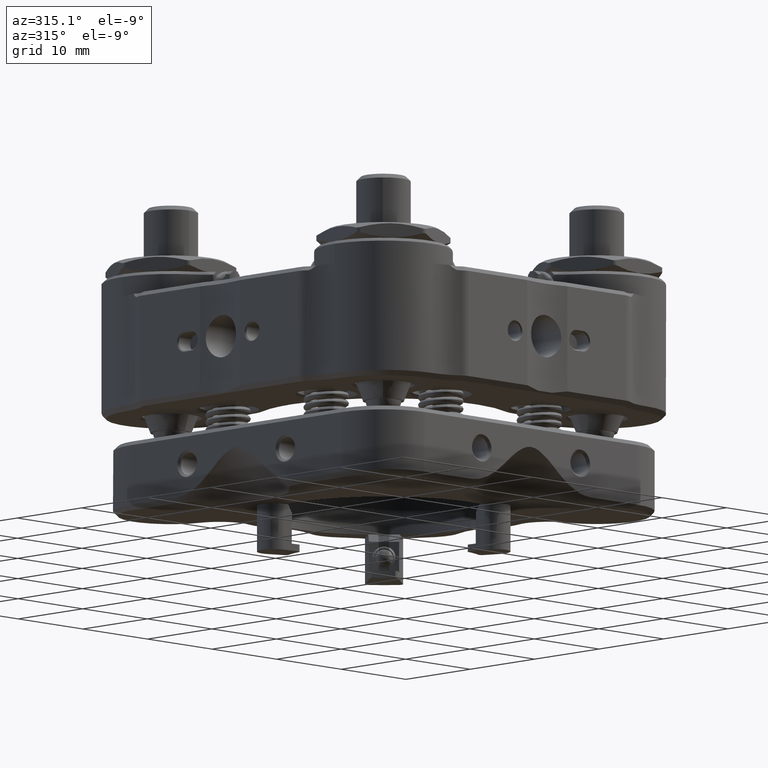
[diagram: clean part render]
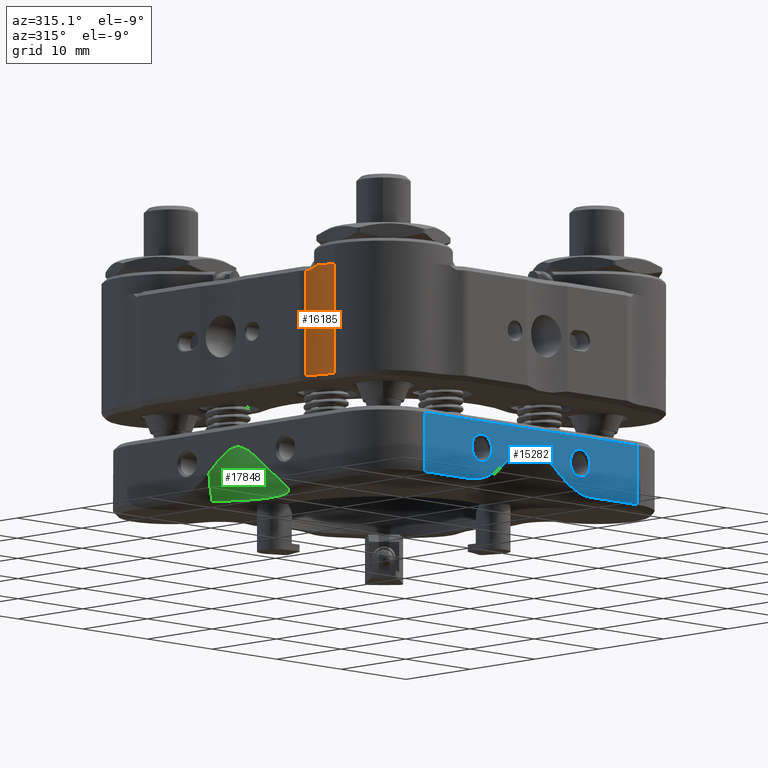
[diagram: same view with three faces highlighted in distinct colors, each labeled with its STEP entity id]
A machine part, auxiliary view with three faces highlighted in distinct colors.
Their STEP definitions:

[orange] entity #16185 — the highlighted cylindrical surface (partial cylindrical patch) has radius 6.477 mm, axis along (-0, -0, -1).
#568 = ORIENTED_EDGE ( 'NONE', *, *, #15772, .F. ) ;
#1416 = DIRECTION ( 'NONE',  ( -0.000000000000000000, -0.000000000000000000, -1.000000000000000000 ) ) ;
#1873 = VERTEX_POINT ( 'NONE', #7665 ) ;
#1997 = CARTESIAN_POINT ( 'NONE',  ( -5.235848266386701866, 12.11409739724832235, 26.18470909685331449 ) ) ;
#2195 = DIRECTION ( 'NONE',  ( -1.000000000000000000, 0.000000000000000000, 0.000000000000000000 ) ) ;
#2839 = AXIS2_PLACEMENT_3D ( 'NONE', #5561, #11232, #2195 ) ;
#2878 = LINE ( 'NONE', #15991, #3056 ) ;
#3056 = VECTOR ( 'NONE', #17599, 1000.000000000000000 ) ;
#3069 = CARTESIAN_POINT ( 'NONE',  ( 0.2211517336132215461, 15.60303419805180702, 26.18470909685331804 ) ) ;
#3095 = CARTESIAN_POINT ( 'NONE',  ( 0.5098201380539540972, 15.10687263955178672, 37.89297105061405091 ) ) ;
#3432 = ORIENTED_EDGE ( 'NONE', *, *, #10567, .T. ) ;
#3992 = CARTESIAN_POINT ( 'NONE',  ( 0.7582047128819536796, 14.57074274114253676, 38.21881809474184166 ) ) ;
#4446 = VECTOR ( 'NONE', #1416, 1000.000000000000000 ) ;
#5155 = EDGE_CURVE ( 'NONE', #10057, #10962, #15899, .T. ) ;
#5561 = CARTESIAN_POINT ( 'NONE',  ( -5.235848266386701866, 12.11409739724832235, 40.91670909685328894 ) ) ;
#5681 = FACE_OUTER_BOUND ( 'NONE', #9482, .T. ) ;
#5837 = DIRECTION ( 'NONE',  ( 1.000000000000000000, -2.410454112056701981E-14, 0.000000000000000000 ) ) ;
#5979 = CARTESIAN_POINT ( 'NONE',  ( 1.241151733613526931, 12.11409739724833301, 38.37670909685328979 ) ) ;
#6762 = CARTESIAN_POINT ( 'NONE',  ( 0.8347914106203585538, 14.37216358581490994, 38.37670909685329690 ) ) ;
#7665 = CARTESIAN_POINT ( 'NONE',  ( 0.2211517336135962464, 15.60303419805121017, 37.85226476518817407 ) ) ;
#7691 = CARTESIAN_POINT ( 'NONE',  ( 0.7979572952428172217, 14.47118931119468499, 38.29653674543263975 ) ) ;
#7820 = CARTESIAN_POINT ( 'NONE',  ( 0.6707764969753293727, 14.77409013573370800, 38.07395457590173748 ) ) ;
#7984 = VERTEX_POINT ( 'NONE', #16446 ) ;
#9044 = CARTESIAN_POINT ( 'NONE',  ( 0.3686859002600476054, 15.36074578826469583, 37.85226476518817407 ) ) ;
#9283 = DIRECTION ( 'NONE',  ( -0.000000000000000000, -0.000000000000000000, -1.000000000000000000 ) ) ;
#9482 = EDGE_LOOP ( 'NONE', ( #9872, #15512, #20023, #19445, #3432, #22421, #568 ) ) ;
#9541 = CARTESIAN_POINT ( 'NONE',  ( 0.3686859002600476054, 15.36074578826469583, 37.85226476518817407 ) ) ;
#9872 = ORIENTED_EDGE ( 'NONE', *, *, #5155, .T. ) ;
#10057 = VERTEX_POINT ( 'NONE', #6762 ) ;
#10451 = VERTEX_POINT ( 'NONE', #9541 ) ;
#10567 = EDGE_CURVE ( 'NONE', #13549, #7984, #11732, .T. ) ;
#10962 = VERTEX_POINT ( 'NONE', #22693 ) ;
#11232 = DIRECTION ( 'NONE',  ( -0.000000000000000000, -0.000000000000000000, -1.000000000000000000 ) ) ;
#11683 = B_SPLINE_CURVE_WITH_KNOTS ( 'NONE', 3,
 ( #23984, #3095, #17920, #16322 ),
 .UNSPECIFIED., .F., .F.,
 ( 4, 4 ),
 ( 0.0007939187146302412786, 0.001232463739666960541 ),
 .UNSPECIFIED. ) ;
#11732 = CIRCLE ( 'NONE', #21979, 6.477000000000002089 ) ;
#11953 = AXIS2_PLACEMENT_3D ( 'NONE', #22748, #9283, #5837 ) ;
#13549 = VERTEX_POINT ( 'NONE', #3069 ) ;
#14537 = EDGE_CURVE ( 'NONE', #10451, #1873, #21930, .T. ) ;
#14734 = CARTESIAN_POINT ( 'NONE',  ( 0.3298610191015162174, 15.42686197527531178, 37.85239079076733759 ) ) ;
#14857 = CARTESIAN_POINT ( 'NONE',  ( 0.2675935170643190530, 15.52958350514387220, 37.85224851225915899 ) ) ;
#14979 = CARTESIAN_POINT ( 'NONE',  ( 0.3429328679414468950, 15.40490022437110795, 37.85242707727061884 ) ) ;
#15254 = CARTESIAN_POINT ( 'NONE',  ( 0.6227957932268850527, 14.87859670921835153, 38.00594670578765033 ) ) ;
#15512 = ORIENTED_EDGE ( 'NONE', *, *, #20585, .T. ) ;
#15772 = EDGE_CURVE ( 'NONE', #10057, #22536, #22979, .T. ) ;
#15899 = B_SPLINE_CURVE_WITH_KNOTS ( 'NONE', 3,
 ( #20922, #7691, #3992, #7820, #15254, #22520 ),
 .UNSPECIFIED., .F., .F.,
 ( 4, 2, 4 ),
 ( 3.299420450044008210E-07, 0.0003971243283376228793, 0.0007939187146302412786 ),
 .UNSPECIFIED. ) ;
#15991 = CARTESIAN_POINT ( 'NONE',  ( 0.2211517336132215461, 15.60303419805180702, 40.91670909685328894 ) ) ;
#16185 = ADVANCED_FACE ( 'NONE', ( #5681 ), #16795, .F. ) ;
#16322 = CARTESIAN_POINT ( 'NONE',  ( 0.3686859002600476054, 15.36074578826469583, 37.85226476518817407 ) ) ;
#16446 = CARTESIAN_POINT ( 'NONE',  ( 1.241151733613298003, 12.11409739724833301, 26.18470909685331804 ) ) ;
#16486 = EDGE_CURVE ( 'NONE', #22536, #7984, #18339, .T. ) ;
#16795 = CYLINDRICAL_SURFACE ( 'NONE', #2839, 6.477000000000002089 ) ;
#17192 = DIRECTION ( 'NONE',  ( -1.000000000000000000, 0.000000000000000000, 0.000000000000000000 ) ) ;
#17599 = DIRECTION ( 'NONE',  ( -0.000000000000000000, -0.000000000000000000, -1.000000000000000000 ) ) ;
#17920 = CARTESIAN_POINT ( 'NONE',  ( 0.4418116568815396716, 15.23451228463644291, 37.85226476518815986 ) ) ;
#18097 = CARTESIAN_POINT ( 'NONE',  ( 1.241151733613298003, 12.11409739724833301, 40.91670909685328894 ) ) ;
#18339 = LINE ( 'NONE', #18097, #4446 ) ;
#19043 = DIRECTION ( 'NONE',  ( 0.000000000000000000, 0.000000000000000000, -1.000000000000000000 ) ) ;
#19445 = ORIENTED_EDGE ( 'NONE', *, *, #22263, .T. ) ;
#20023 = ORIENTED_EDGE ( 'NONE', *, *, #14537, .T. ) ;
#20148 = CARTESIAN_POINT ( 'NONE',  ( 0.2902566093386411694, 15.49251328379700077, 37.85226608425499961 ) ) ;
#20585 = EDGE_CURVE ( 'NONE', #10962, #10451, #11683, .T. ) ;
#20922 = CARTESIAN_POINT ( 'NONE',  ( 0.8347914106203585538, 14.37216358581490994, 38.37670909685329690 ) ) ;
#21930 = B_SPLINE_CURVE_WITH_KNOTS ( 'NONE', 3,
 ( #9044, #24116, #14979, #14734, #22491, #22013, #20148, #14857, #22248, #22368 ),
 .UNSPECIFIED., .F., .F.,
 ( 4, 3, 3, 4 ),
 ( 1.893477691975264912E-18, 7.667292523605344985E-05, 0.0001533447206454750171, 0.0002836954016267847676 ),
 .UNSPECIFIED. ) ;
#21979 = AXIS2_PLACEMENT_3D ( 'NONE', #1997, #19043, #17192 ) ;
#22013 = CARTESIAN_POINT ( 'NONE',  ( 0.3035873900774355150, 15.47070800732669227, 37.85227642037422413 ) ) ;
#22248 = CARTESIAN_POINT ( 'NONE',  ( 0.2445559523363232124, 15.56642796845700438, 37.85247422117595306 ) ) ;
#22263 = EDGE_CURVE ( 'NONE', #1873, #13549, #2878, .T. ) ;
#22368 = CARTESIAN_POINT ( 'NONE',  ( 0.2211517336135962464, 15.60303419805121017, 37.85226476518817407 ) ) ;
#22421 = ORIENTED_EDGE ( 'NONE', *, *, #16486, .F. ) ;
#22491 = CARTESIAN_POINT ( 'NONE',  ( 0.3167893018195869215, 15.44882350515155878, 37.85235450462925400 ) ) ;
#22520 = CARTESIAN_POINT ( 'NONE',  ( 0.5691312526200543731, 14.98703000765141979, 37.95228216517772069 ) ) ;
#22536 = VERTEX_POINT ( 'NONE', #5979 ) ;
#22693 = CARTESIAN_POINT ( 'NONE',  ( 0.5691312526200543731, 14.98703000765141979, 37.95228216517772069 ) ) ;
#22748 = CARTESIAN_POINT ( 'NONE',  ( -5.235848266386701866, 12.11409739724832235, 38.37670909685328979 ) ) ;
#22979 = CIRCLE ( 'NONE', #11953, 6.477000000000002089 ) ;
#23984 = CARTESIAN_POINT ( 'NONE',  ( 0.5691312526200543731, 14.98703000765141979, 37.95228216517772069 ) ) ;
#24116 = CARTESIAN_POINT ( 'NONE',  ( 0.3558751676715187218, 15.38286034452241857, 37.85242155693460120 ) ) ;

[blue] entity #15282 — the highlighted planar face has unit normal (0, 1, 0).
#47 = CARTESIAN_POINT ( 'NONE',  ( 16.50999999999978485, -22.86000000000005272, -25.52700000000059433 ) ) ;
#55 = DIRECTION ( 'NONE',  ( 1.000000000000000000, -4.490754628649650589E-15, 0.000000000000000000 ) ) ;
#380 = ORIENTED_EDGE ( 'NONE', *, *, #9646, .T. ) ;
#703 = CARTESIAN_POINT ( 'NONE',  ( -5.698729411158814706, -22.85999999999996035, -18.89167187656439140 ) ) ;
#726 = EDGE_LOOP ( 'NONE', ( #14531, #10539 ) ) ;
#805 = CARTESIAN_POINT ( 'NONE',  ( 6.968623685975025239, -22.86000000000001364, -19.47722792319549256 ) ) ;
#944 = CARTESIAN_POINT ( 'NONE',  ( 1.936523536324799677, -22.85999999999999943, -16.01078407317872276 ) ) ;
#1406 = AXIS2_PLACEMENT_3D ( 'NONE', #19906, #2979, #8180 ) ;
#2267 = EDGE_CURVE ( 'NONE', #5808, #2866, #8943, .T. ) ;
#2306 = ORIENTED_EDGE ( 'NONE', *, *, #17853, .T. ) ;
#2427 = ORIENTED_EDGE ( 'NONE', *, *, #10871, .T. ) ;
#2781 = CARTESIAN_POINT ( 'NONE',  ( 2.622963139611198091, -22.85999999999999233, -16.46929230700211377 ) ) ;
#2866 = VERTEX_POINT ( 'NONE', #5428 ) ;
#2970 = ORIENTED_EDGE ( 'NONE', *, *, #16178, .F. ) ;
#2979 = DIRECTION ( 'NONE',  ( -0.000000000000000000, -1.000000000000000000, -0.000000000000000000 ) ) ;
#3181 = DIRECTION ( 'NONE',  ( -0.000000000000000000, -1.000000000000000000, -0.000000000000000000 ) ) ;
#3427 = AXIS2_PLACEMENT_3D ( 'NONE', #23952, #3181, #10483 ) ;
#3513 = FACE_BOUND ( 'NONE', #726, .T. ) ;
#3627 = FACE_BOUND ( 'NONE', #17939, .T. ) ;
#3732 = EDGE_CURVE ( 'NONE', #7927, #19951, #6104, .T. ) ;
#3810 = CARTESIAN_POINT ( 'NONE',  ( -3.600392988598216881, -22.85999999999997101, -17.22872272163528962 ) ) ;
#3821 = CARTESIAN_POINT ( 'NONE',  ( -16.51000000000007617, -22.85999999999987864, -19.93900000000066441 ) ) ;
#3843 = DIRECTION ( 'NONE',  ( -1.000000000000000000, 4.490754628649650589E-15, -0.000000000000000000 ) ) ;
#3854 = VERTEX_POINT ( 'NONE', #15608 ) ;
#3908 = DIRECTION ( 'NONE',  ( 0.000000000000000000, 0.000000000000000000, -1.000000000000000000 ) ) ;
#4111 = B_SPLINE_CURVE_WITH_KNOTS ( 'NONE', 3,
 ( #10081, #6383, #13430, #15778, #17621, #703, #8225, #9844 ),
 .UNSPECIFIED., .F., .F.,
 ( 4, 2, 2, 4 ),
 ( 0.000000000000000000, 0.001386642077695629006, 0.002773284155391258013, 0.005546568310782516026 ),
 .UNSPECIFIED. ) ;
#4174 = CARTESIAN_POINT ( 'NONE',  ( -0.2090011009307225498, -22.85999999999998167, -15.36700000000062438 ) ) ;
#4215 = CIRCLE ( 'NONE', #3427, 1.525000000000002132 ) ;
#4248 = EDGE_CURVE ( 'NONE', #19951, #3854, #12999, .T. ) ;
#4669 = CIRCLE ( 'NONE', #6256, 1.525000000000002132 ) ;
#4776 = CARTESIAN_POINT ( 'NONE',  ( 3.916121610563087607, -22.86000000000000654, -17.49193097543176734 ) ) ;
#5129 = CARTESIAN_POINT ( 'NONE',  ( 7.619999999999755858, -22.86000000000002075, -17.85200000000059717 ) ) ;
#5312 = EDGE_CURVE ( 'NONE', #13520, #5807, #7325, .T. ) ;
#5428 = CARTESIAN_POINT ( 'NONE',  ( -4.229481576568709933, -22.85999999999996390, -17.76057014813173396 ) ) ;
#5436 = LINE ( 'NONE', #14952, #20668 ) ;
#5679 = CARTESIAN_POINT ( 'NONE',  ( -2.953480355449388028, -22.85999999999997101, -16.71742150105082558 ) ) ;
#5705 = CARTESIAN_POINT ( 'NONE',  ( 16.50999999999978485, -22.86000000000005627, -13.33500000000058883 ) ) ;
#5807 = VERTEX_POINT ( 'NONE', #10624 ) ;
#5808 = VERTEX_POINT ( 'NONE', #21862 ) ;
#6104 = LINE ( 'NONE', #47, #8756 ) ;
#6256 = AXIS2_PLACEMENT_3D ( 'NONE', #7736, #19216, #3908 ) ;
#6383 = CARTESIAN_POINT ( 'NONE',  ( -8.758351000379049012, -22.85999999999994259, -19.93900000000063955 ) ) ;
#6477 = CARTESIAN_POINT ( 'NONE',  ( 7.628391849384467349, -22.86000000000002075, -19.70508273283732592 ) ) ;
#6555 = CARTESIAN_POINT ( 'NONE',  ( 7.619999999999755858, -22.86000000000002075, -14.80200000000059468 ) ) ;
#7023 = CIRCLE ( 'NONE', #13720, 1.525000000000002132 ) ;
#7325 = CIRCLE ( 'NONE', #1406, 1.525000000000002132 ) ;
#7424 = EDGE_CURVE ( 'NONE', #15301, #10671, #11714, .T. ) ;
#7736 = CARTESIAN_POINT ( 'NONE',  ( -7.620000000000247908, -22.85999999999994969, -16.32700000000059504 ) ) ;
#7886 = CARTESIAN_POINT ( 'NONE',  ( -3.916793376327931675, -22.85999999999996390, -17.49250687094702528 ) ) ;
#7927 = VERTEX_POINT ( 'NONE', #20385 ) ;
#8079 = CARTESIAN_POINT ( 'NONE',  ( 4.229481576567869716, -22.86000000000000298, -17.76057014813174817 ) ) ;
#8180 = DIRECTION ( 'NONE',  ( 0.000000000000000000, 0.000000000000000000, -1.000000000000000000 ) ) ;
#8225 = CARTESIAN_POINT ( 'NONE',  ( -4.938132215087689403, -22.85999999999996390, -18.36808655711089244 ) ) ;
#8464 = CARTESIAN_POINT ( 'NONE',  ( 0.2079706813006362287, -22.85999999999997812, -15.36700000000061905 ) ) ;
#8617 = CARTESIAN_POINT ( 'NONE',  ( 9.229662777453750522, -22.86000000000002430, -19.93900000000067152 ) ) ;
#8756 = VECTOR ( 'NONE', #11418, 1000.000000000000000 ) ;
#8943 = B_SPLINE_CURVE_WITH_KNOTS ( 'NONE', 3,
 ( #15314, #4174, #18869, #11855, #22578, #20729, #20982, #15069, #5679, #3810, #7886, #21224 ),
 .UNSPECIFIED., .F., .F.,
 ( 4, 2, 2, 2, 2, 4 ),
 ( 0.008276144984364831869, 0.008898138070394936289, 0.009520131156425042443, 0.01076411732848524955, 0.01200810350054545492, 0.01325208967260566202 ),
 .UNSPECIFIED. ) ;
#9319 = DIRECTION ( 'NONE',  ( -0.000000000000000000, 0.000000000000000000, 1.000000000000000000 ) ) ;
#9646 = EDGE_CURVE ( 'NONE', #17018, #13821, #24202, .T. ) ;
#9844 = CARTESIAN_POINT ( 'NONE',  ( -4.229481576568709933, -22.85999999999996390, -17.76057014813173396 ) ) ;
#10081 = CARTESIAN_POINT ( 'NONE',  ( -9.229662777454583633, -22.85999999999994259, -19.93900000000064310 ) ) ;
#10215 = CARTESIAN_POINT ( 'NONE',  ( -4.075572291619721219E-13, -22.85999999999998167, -15.36700000000062083 ) ) ;
#10425 = CARTESIAN_POINT ( 'NONE',  ( 9.229662777453750522, -22.86000000000002430, -19.93900000000067152 ) ) ;
#10483 = DIRECTION ( 'NONE',  ( 0.000000000000000000, 0.000000000000000000, -1.000000000000000000 ) ) ;
#10539 = ORIENTED_EDGE ( 'NONE', *, *, #10610, .F. ) ;
#10610 = EDGE_CURVE ( 'NONE', #16714, #22279, #4215, .T. ) ;
#10624 = CARTESIAN_POINT ( 'NONE',  ( -7.620000000000247908, -22.85999999999994969, -17.85200000000059717 ) ) ;
#10671 = VERTEX_POINT ( 'NONE', #8617 ) ;
#10871 = EDGE_CURVE ( 'NONE', #10671, #7927, #14810, .T. ) ;
#11214 = DIRECTION ( 'NONE',  ( 1.000000000000000000, -4.490754628649650589E-15, -1.470995073511045887E-15 ) ) ;
#11418 = DIRECTION ( 'NONE',  ( -0.000000000000000000, 0.000000000000000000, 1.000000000000000000 ) ) ;
#11515 = EDGE_CURVE ( 'NONE', #22279, #16714, #7023, .T. ) ;
#11714 = B_SPLINE_CURVE_WITH_KNOTS ( 'NONE', 3,
 ( #8079, #21795, #15866, #12408, #805, #23392, #6477, #14009, #12172, #10425 ),
 .UNSPECIFIED., .F., .F.,
 ( 4, 2, 2, 2, 4 ),
 ( 0.000000000000000000, 0.002769708619595030730, 0.003462135774493787111, 0.004154562929392544360, 0.005539417239190053653 ),
 .UNSPECIFIED. ) ;
#11855 = CARTESIAN_POINT ( 'NONE',  ( -0.8173788857852981593, -22.85999999999998167, -15.48810837759632442 ) ) ;
#12152 = CARTESIAN_POINT ( 'NONE',  ( 4.229481576567869716, -22.86000000000000298, -17.76057014813174817 ) ) ;
#12172 = CARTESIAN_POINT ( 'NONE',  ( 8.758282109640775914, -22.86000000000002075, -19.93900000000067507 ) ) ;
#12323 = VECTOR ( 'NONE', #3843, 1000.000000000000000 ) ;
#12408 = CARTESIAN_POINT ( 'NONE',  ( 6.751668379958502442, -22.86000000000002075, -19.38633800442223887 ) ) ;
#12951 = CARTESIAN_POINT ( 'NONE',  ( 16.50999999999979195, -22.86000000000005627, -19.93900000000068573 ) ) ;
#12999 = LINE ( 'NONE', #5705, #12323 ) ;
#13430 = CARTESIAN_POINT ( 'NONE',  ( -8.299961974695005296, -22.85999999999994259, -19.87418613520483035 ) ) ;
#13520 = VERTEX_POINT ( 'NONE', #20480 ) ;
#13720 = AXIS2_PLACEMENT_3D ( 'NONE', #19044, #19164, #17442 ) ;
#13821 = VERTEX_POINT ( 'NONE', #15431 ) ;
#14009 = CARTESIAN_POINT ( 'NONE',  ( 8.300355303882216873, -22.86000000000002430, -19.87419358907742506 ) ) ;
#14531 = ORIENTED_EDGE ( 'NONE', *, *, #11515, .F. ) ;
#14648 = ORIENTED_EDGE ( 'NONE', *, *, #20231, .F. ) ;
#14691 = CARTESIAN_POINT ( 'NONE',  ( 16.50999999999978485, -22.86000000000005272, -13.33500000000058883 ) ) ;
#14750 = ORIENTED_EDGE ( 'NONE', *, *, #7424, .T. ) ;
#14810 = LINE ( 'NONE', #12951, #20810 ) ;
#14892 = CARTESIAN_POINT ( 'NONE',  ( 16.50999999999978485, -22.86000000000005627, -25.52700000000059433 ) ) ;
#14952 = CARTESIAN_POINT ( 'NONE',  ( -16.51000000000041013, -22.85999999999990706, -25.52700000000059433 ) ) ;
#15069 = CARTESIAN_POINT ( 'NONE',  ( -2.622361533256657218, -22.85999999999997812, -16.46892267085421935 ) ) ;
#15282 = ADVANCED_FACE ( 'NONE', ( #20427, #3627, #3513 ), #18691, .F. ) ;
#15301 = VERTEX_POINT ( 'NONE', #12152 ) ;
#15314 = CARTESIAN_POINT ( 'NONE',  ( -4.075572291619721219E-13, -22.85999999999998167, -15.36700000000062083 ) ) ;
#15431 = CARTESIAN_POINT ( 'NONE',  ( -9.229662777454583633, -22.85999999999994259, -19.93900000000064310 ) ) ;
#15608 = CARTESIAN_POINT ( 'NONE',  ( -16.51000000000041013, -22.85999999999990706, -13.33500000000058883 ) ) ;
#15778 = CARTESIAN_POINT ( 'NONE',  ( -7.402412177532030846, -22.85999999999995325, -19.64811938651002876 ) ) ;
#15866 = CARTESIAN_POINT ( 'NONE',  ( 5.699345662576018157, -22.86000000000001009, -18.89226132215422282 ) ) ;
#15890 = CARTESIAN_POINT ( 'NONE',  ( 1.010252391307756348, -22.85999999999998522, -15.55514775209780609 ) ) ;
#16016 = CARTESIAN_POINT ( 'NONE',  ( 4.229481576567869716, -22.86000000000000298, -17.76057014813174817 ) ) ;
#16178 = EDGE_CURVE ( 'NONE', #17018, #3854, #5436, .T. ) ;
#16714 = VERTEX_POINT ( 'NONE', #6555 ) ;
#16874 = ORIENTED_EDGE ( 'NONE', *, *, #23108, .F. ) ;
#16979 = DIRECTION ( 'NONE',  ( 4.490754628649650589E-15, 1.000000000000000000, 0.000000000000000000 ) ) ;
#17018 = VERTEX_POINT ( 'NONE', #3821 ) ;
#17442 = DIRECTION ( 'NONE',  ( 0.000000000000000000, 0.000000000000000000, -1.000000000000000000 ) ) ;
#17621 = CARTESIAN_POINT ( 'NONE',  ( -6.959163889735672903, -22.85999999999995325, -19.48390881809312702 ) ) ;
#17853 = EDGE_CURVE ( 'NONE', #13821, #2866, #4111, .T. ) ;
#17885 = ORIENTED_EDGE ( 'NONE', *, *, #3732, .T. ) ;
#17939 = EDGE_LOOP ( 'NONE', ( #16874, #19523 ) ) ;
#18510 = CARTESIAN_POINT ( 'NONE',  ( 16.50999999999979195, -22.86000000000005627, -19.93900000000068573 ) ) ;
#18691 = PLANE ( 'NONE',  #21063 ) ;
#18869 = CARTESIAN_POINT ( 'NONE',  ( -0.4150878147499042492, -22.85999999999998167, -15.39325942732605057 ) ) ;
#19044 = CARTESIAN_POINT ( 'NONE',  ( 7.619999999999755858, -22.86000000000002075, -16.32700000000059504 ) ) ;
#19164 = DIRECTION ( 'NONE',  ( -0.000000000000000000, -1.000000000000000000, -0.000000000000000000 ) ) ;
#19216 = DIRECTION ( 'NONE',  ( -0.000000000000000000, -1.000000000000000000, -0.000000000000000000 ) ) ;
#19523 = ORIENTED_EDGE ( 'NONE', *, *, #5312, .F. ) ;
#19589 = CARTESIAN_POINT ( 'NONE',  ( 2.952488741835886277, -22.85999999999999943, -16.71666974125260907 ) ) ;
#19712 = CARTESIAN_POINT ( 'NONE',  ( 0.8126041441004485666, -22.85999999999998877, -15.48669311268612603 ) ) ;
#19906 = CARTESIAN_POINT ( 'NONE',  ( -7.620000000000247908, -22.85999999999994969, -16.32700000000059504 ) ) ;
#19951 = VERTEX_POINT ( 'NONE', #14691 ) ;
#19989 = DIRECTION ( 'NONE',  ( 1.000000000000000000, -4.490754628649650589E-15, -1.470995073511045887E-15 ) ) ;
#20231 = EDGE_CURVE ( 'NONE', #15301, #5808, #20238, .T. ) ;
#20238 = B_SPLINE_CURVE_WITH_KNOTS ( 'NONE', 3,
 ( #16016, #4776, #23301, #19589, #2781, #944, #23186, #15890, #19712, #21569, #8464, #10215 ),
 .UNSPECIFIED., .F., .F.,
 ( 4, 2, 2, 2, 2, 4 ),
 ( 0.003324732755800565744, 0.004562585812941631624, 0.005800438870082696638, 0.007038291927223761651, 0.007657218455794296760, 0.008276144984364831869 ),
 .UNSPECIFIED. ) ;
#20385 = CARTESIAN_POINT ( 'NONE',  ( 16.51000000000012591, -22.86000000000005627, -19.93900000000068573 ) ) ;
#20427 = FACE_OUTER_BOUND ( 'NONE', #23679, .T. ) ;
#20480 = CARTESIAN_POINT ( 'NONE',  ( -7.620000000000247908, -22.85999999999994969, -14.80200000000059468 ) ) ;
#20668 = VECTOR ( 'NONE', #9319, 1000.000000000000000 ) ;
#20729 = CARTESIAN_POINT ( 'NONE',  ( -1.585749114576314289, -22.85999999999997812, -15.80163404168829011 ) ) ;
#20810 = VECTOR ( 'NONE', #11214, 1000.000000000000000 ) ;
#20982 = CARTESIAN_POINT ( 'NONE',  ( -1.938284922715207692, -22.85999999999997101, -16.01192844048384956 ) ) ;
#21063 = AXIS2_PLACEMENT_3D ( 'NONE', #14892, #16979, #55 ) ;
#21212 = ORIENTED_EDGE ( 'NONE', *, *, #2267, .F. ) ;
#21224 = CARTESIAN_POINT ( 'NONE',  ( -4.229481576568709933, -22.85999999999996390, -17.76057014813173396 ) ) ;
#21547 = VECTOR ( 'NONE', #19989, 1000.000000000000000 ) ;
#21569 = CARTESIAN_POINT ( 'NONE',  ( 0.4117895150834524620, -22.85999999999998522, -15.39277718506362191 ) ) ;
#21795 = CARTESIAN_POINT ( 'NONE',  ( 4.938237052535254357, -22.85999999999999943, -18.36817643280807033 ) ) ;
#21862 = CARTESIAN_POINT ( 'NONE',  ( -4.075572291619721219E-13, -22.85999999999998167, -15.36700000000062083 ) ) ;
#22266 = ORIENTED_EDGE ( 'NONE', *, *, #4248, .T. ) ;
#22279 = VERTEX_POINT ( 'NONE', #5129 ) ;
#22578 = CARTESIAN_POINT ( 'NONE',  ( -1.015959152698838297, -22.85999999999998167, -15.55726278164787679 ) ) ;
#23108 = EDGE_CURVE ( 'NONE', #5807, #13520, #4669, .T. ) ;
#23186 = CARTESIAN_POINT ( 'NONE',  ( 1.579349331885235408, -22.85999999999999233, -15.79823970164770053 ) ) ;
#23301 = CARTESIAN_POINT ( 'NONE',  ( 3.599203654790401163, -22.86000000000000298, -17.22775083071130098 ) ) ;
#23392 = CARTESIAN_POINT ( 'NONE',  ( 7.406939087338557215, -22.86000000000002075, -19.63650124086020554 ) ) ;
#23679 = EDGE_LOOP ( 'NONE', ( #380, #2306, #21212, #14648, #14750, #2427, #17885, #22266, #2970 ) ) ;
#23952 = CARTESIAN_POINT ( 'NONE',  ( 7.619999999999755858, -22.86000000000002075, -16.32700000000059504 ) ) ;
#24202 = LINE ( 'NONE', #18510, #21547 ) ;

[green] entity #17848 — the highlighted conical surface has half-angle 45 deg.
#42 = CARTESIAN_POINT ( 'NONE',  ( -22.86000000000001009, 4.229481576568355550, -17.76057014813169133 ) ) ;
#208 = CARTESIAN_POINT ( 'NONE',  ( -22.86000000000003496, 1.592808549479525215, -15.80559546031105889 ) ) ;
#456 = CARTESIAN_POINT ( 'NONE',  ( -22.86000000000001364, 3.601951637394633643, -17.23002469957911487 ) ) ;
#576 = CARTESIAN_POINT ( 'NONE',  ( -22.86000000000003496, 0.8271567452071758586, -15.49118638754346478 ) ) ;
#966 = B_SPLINE_CURVE_WITH_KNOTS ( 'NONE', 3,
 ( #12874, #7513, #2065, #15068 ),
 .UNSPECIFIED., .F., .F.,
 ( 4, 4 ),
 ( 0.000000000000000000, 0.003885240765737177100 ),
 .UNSPECIFIED. ) ;
#1292 = CARTESIAN_POINT ( 'NONE',  ( -22.86000000000009180, -4.229481576568060675, -17.76057014813168777 ) ) ;
#1328 = VERTEX_POINT ( 'NONE', #1292 ) ;
#1571 = CARTESIAN_POINT ( 'NONE',  ( -22.86000000000007404, -2.618854091105971005, -16.46626433496506081 ) ) ;
#1918 = DIRECTION ( 'NONE',  ( -0.000000000000000000, -0.000000000000000000, 1.000000000000000000 ) ) ;
#2048 = CARTESIAN_POINT ( 'NONE',  ( -22.86000000000004917, -0.4007461880109177699, -15.39096868739139978 ) ) ;
#2065 = CARTESIAN_POINT ( 'NONE',  ( -22.17070978866706099, -4.861317656568517442, -18.65710877305313531 ) ) ;
#2157 = DIRECTION ( 'NONE',  ( 1.229331597148921150E-14, 1.000000000000000000, 0.000000000000000000 ) ) ;
#2350 = CIRCLE ( 'NONE', #16170, 7.619999999999983231 ) ;
#3373 = ORIENTED_EDGE ( 'NONE', *, *, #9837, .T. ) ;
#3424 = CARTESIAN_POINT ( 'NONE',  ( -22.86000000000008114, -3.597634822816767386, -17.22644066595375989 ) ) ;
#4150 = CARTESIAN_POINT ( 'NONE',  ( -22.86000000000002075, 2.626460137870049838, -16.47194224105629701 ) ) ;
#4720 = EDGE_CURVE ( 'NONE', #7677, #8196, #19699, .T. ) ;
#5148 = ORIENTED_EDGE ( 'NONE', *, *, #4720, .T. ) ;
#5773 = CARTESIAN_POINT ( 'NONE',  ( -22.86000000000005272, -0.1962796670156755907, -15.36601400228406078 ) ) ;
#5891 = CARTESIAN_POINT ( 'NONE',  ( -25.40000000000010161, 1.734723475976807094E-13, -20.44700000000059248 ) ) ;
#6027 = DIRECTION ( 'NONE',  ( -1.000000000000000000, 1.321165399303936756E-14, -3.642463991552356874E-16 ) ) ;
#7513 = CARTESIAN_POINT ( 'NONE',  ( -21.42693092210641481, -5.432130625371247135, -19.55154072201971971 ) ) ;
#7612 = CARTESIAN_POINT ( 'NONE',  ( -22.86000000000002075, 3.917564185806425847, -17.49316767527163918 ) ) ;
#7677 = VERTEX_POINT ( 'NONE', #42 ) ;
#7858 = CARTESIAN_POINT ( 'NONE',  ( -22.86000000000006338, -1.001132595067075748, -15.55173237971501621 ) ) ;
#8196 = VERTEX_POINT ( 'NONE', #12599 ) ;
#8245 = B_SPLINE_CURVE_WITH_KNOTS ( 'NONE', 3,
 ( #14676, #12811, #3424, #10959, #1571, #13787, #18968, #7858, #17009, #2048, #5773, #22681, #9956, #576, #21323, #208, #21198, #4150, #15648, #456, #7612, #19095 ),
 .UNSPECIFIED., .F., .F.,
 ( 4, 2, 2, 2, 2, 2, 2, 2, 2, 2, 4 ),
 ( 0.003324732755800691511, 0.004565652370401299814, 0.005806571985001908985, 0.007047491599602517288, 0.007667951406902821440, 0.008288411214203126459, 0.008908871021503429743, 0.009529330828803734763, 0.01077025044340434307, 0.01201117005800495310, 0.01325208967260556314 ),
 .UNSPECIFIED. ) ;
#8421 = CONICAL_SURFACE ( 'NONE', #24218, 9.524999999999984368, 0.7853981633974471688 ) ;
#9837 = EDGE_CURVE ( 'NONE', #19493, #1328, #966, .T. ) ;
#9956 = CARTESIAN_POINT ( 'NONE',  ( -22.86000000000004562, 0.4261284073514840509, -15.39512893873771127 ) ) ;
#10959 = CARTESIAN_POINT ( 'NONE',  ( -22.86000000000008114, -2.949250967876838825, -16.71418190035217322 ) ) ;
#11000 = CARTESIAN_POINT ( 'NONE',  ( -20.65681846350876683, -5.963776396871817376, -20.44700000000059248 ) ) ;
#11822 = EDGE_LOOP ( 'NONE', ( #16838, #3373, #20491, #5148 ) ) ;
#12599 = CARTESIAN_POINT ( 'NONE',  ( -20.65681846350865314, 5.963776396872074059, -20.44700000000059248 ) ) ;
#12811 = CARTESIAN_POINT ( 'NONE',  ( -22.86000000000009180, -3.915345317823418547, -17.49126547038309454 ) ) ;
#12874 = CARTESIAN_POINT ( 'NONE',  ( -20.65681846350876683, -5.963776396871817376, -20.44700000000059248 ) ) ;
#13787 = CARTESIAN_POINT ( 'NONE',  ( -22.86000000000006338, -1.930427279923352613, -16.00699962772288387 ) ) ;
#13896 = CARTESIAN_POINT ( 'NONE',  ( -21.42693092210631178, 5.432130625371518917, -19.55154072201972326 ) ) ;
#14221 = EDGE_CURVE ( 'NONE', #19493, #8196, #2350, .T. ) ;
#14279 = CARTESIAN_POINT ( 'NONE',  ( -22.17070978866696862, 4.861317656568799883, -18.65710877305313886 ) ) ;
#14676 = CARTESIAN_POINT ( 'NONE',  ( -22.86000000000009180, -4.229481576568060675, -17.76057014813168777 ) ) ;
#15068 = CARTESIAN_POINT ( 'NONE',  ( -22.86000000000009180, -4.229481576568060675, -17.76057014813168777 ) ) ;
#15648 = CARTESIAN_POINT ( 'NONE',  ( -22.86000000000002075, 2.956705564381371776, -16.71990106494079953 ) ) ;
#16122 = CARTESIAN_POINT ( 'NONE',  ( -20.65681846350865314, 5.963776396872074059, -20.44700000000059248 ) ) ;
#16170 = AXIS2_PLACEMENT_3D ( 'NONE', #5891, #1918, #2157 ) ;
#16838 = ORIENTED_EDGE ( 'NONE', *, *, #14221, .F. ) ;
#17009 = CARTESIAN_POINT ( 'NONE',  ( -22.86000000000005983, -0.8027894956768356627, -15.48365370289159060 ) ) ;
#17378 = FACE_OUTER_BOUND ( 'NONE', #11822, .T. ) ;
#17848 = ADVANCED_FACE ( 'NONE', ( #17378 ), #8421, .F. ) ;
#18968 = CARTESIAN_POINT ( 'NONE',  ( -22.86000000000006693, -1.572199453205341158, -15.79425654322220574 ) ) ;
#19095 = CARTESIAN_POINT ( 'NONE',  ( -22.86000000000001009, 4.229481576568355550, -17.76057014813169133 ) ) ;
#19099 = CARTESIAN_POINT ( 'NONE',  ( -25.40000000000010161, 1.700029006457270953E-13, -22.35200000000060072 ) ) ;
#19493 = VERTEX_POINT ( 'NONE', #11000 ) ;
#19699 = B_SPLINE_CURVE_WITH_KNOTS ( 'NONE', 3,
 ( #23661, #14279, #13896, #16122 ),
 .UNSPECIFIED., .F., .F.,
 ( 4, 4 ),
 ( 0.000000000000000000, 0.003883556403409376030 ),
 .UNSPECIFIED. ) ;
#20491 = ORIENTED_EDGE ( 'NONE', *, *, #23069, .T. ) ;
#21198 = CARTESIAN_POINT ( 'NONE',  ( -22.86000000000003496, 1.944302519124479156, -16.01567109791675847 ) ) ;
#21323 = CARTESIAN_POINT ( 'NONE',  ( -22.86000000000003851, 1.025063637092831215, -15.56071604602862557 ) ) ;
#22681 = CARTESIAN_POINT ( 'NONE',  ( -22.86000000000004917, 0.2210194410077958582, -15.36804623913340606 ) ) ;
#22935 = DIRECTION ( 'NONE',  ( 4.553079989440442642E-16, -9.106159978881207730E-17, -1.000000000000000000 ) ) ;
#23069 = EDGE_CURVE ( 'NONE', #1328, #7677, #8245, .T. ) ;
#23661 = CARTESIAN_POINT ( 'NONE',  ( -22.86000000000001009, 4.229481576568355550, -17.76057014813169133 ) ) ;
#24218 = AXIS2_PLACEMENT_3D ( 'NONE', #19099, #22935, #6027 ) ;